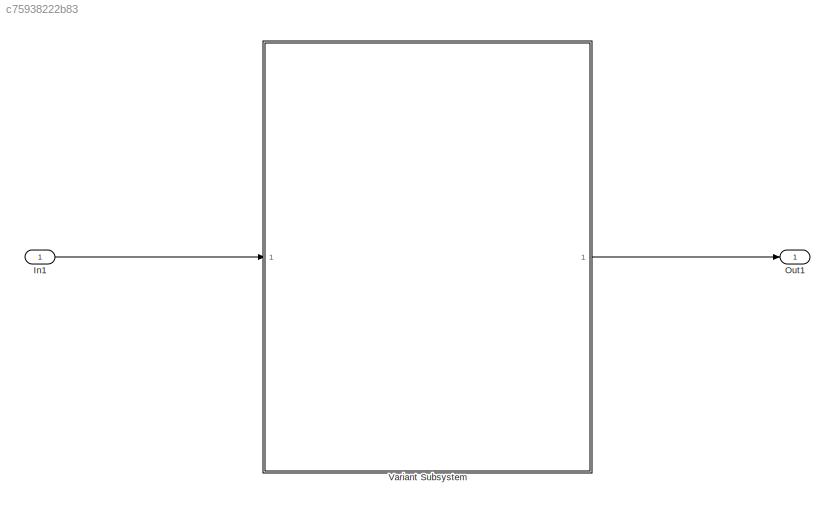
MODEL slx_c75938222b83
KIND model
CONFIG AbsTol = auto
CONFIG EnableMultiTasking = off
CONFIG FixedStep = auto
CONFIG MaxStep = auto
CONFIG MinStep = auto
CONFIG RelTol = 1e-3
CONFIG SampleTimeConstraint = Unconstrained
CONFIG SolverName = VariableStepAuto
CONFIG StartTime = 0.0
CONFIG StopTime = 10.0
BLOCK [Inport] In1
BLOCK [Outport] Out1
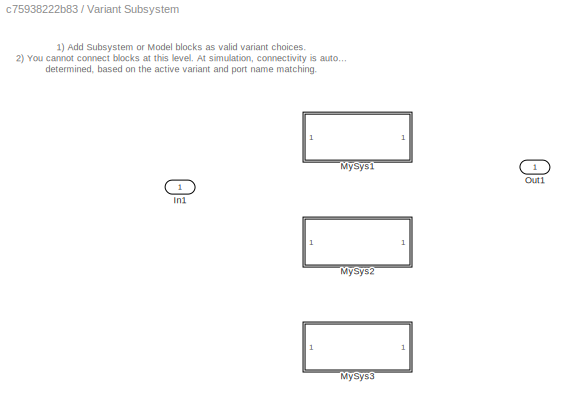
BLOCK [SubSystem] Variant Subsystem
  Ports = [1, 1]
  RequestExecContextInheritance = off
  Variant = on
BLOCK [Inport] Variant Subsystem/In1
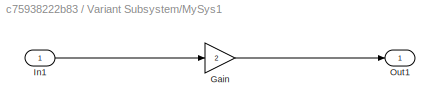
BLOCK [SubSystem] Variant Subsystem/MySys1
  Ports = [1, 1]
  RequestExecContextInheritance = off
  VariantControl = KK == 1
BLOCK [Gain] Variant Subsystem/MySys1/Gain
  Gain = 2
BLOCK [Inport] Variant Subsystem/MySys1/In1
BLOCK [Outport] Variant Subsystem/MySys1/Out1
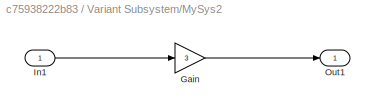
BLOCK [SubSystem] Variant Subsystem/MySys2
  Ports = [1, 1]
  RequestExecContextInheritance = off
  VariantControl = KK == 2
BLOCK [Gain] Variant Subsystem/MySys2/Gain
  Gain = 3
BLOCK [Inport] Variant Subsystem/MySys2/In1
BLOCK [Outport] Variant Subsystem/MySys2/Out1
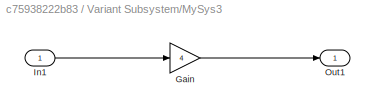
BLOCK [SubSystem] Variant Subsystem/MySys3
  Ports = [1, 1]
  RequestExecContextInheritance = off
  VariantControl = KK == 3
BLOCK [Gain] Variant Subsystem/MySys3/Gain
  Gain = 4
BLOCK [Inport] Variant Subsystem/MySys3/In1
BLOCK [Outport] Variant Subsystem/MySys3/Out1
BLOCK [Outport] Variant Subsystem/Out1
ANNOTATION Variant Subsystem: 1) Add Subsystem or Model blocks as valid variant choices. 2) You cannot connect blocks at this level. At simulation, connectivity is automatically determined, based on the active variant and port name matching.
LINE In1:1 -> Variant Subsystem:1
LINE Variant Subsystem/MySys1/Gain:1 -> Variant Subsystem/MySys1/Out1:1
LINE Variant Subsystem/MySys1/In1:1 -> Variant Subsystem/MySys1/Gain:1
LINE Variant Subsystem/MySys2/Gain:1 -> Variant Subsystem/MySys2/Out1:1
LINE Variant Subsystem/MySys2/In1:1 -> Variant Subsystem/MySys2/Gain:1
LINE Variant Subsystem/MySys3/Gain:1 -> Variant Subsystem/MySys3/Out1:1
LINE Variant Subsystem/MySys3/In1:1 -> Variant Subsystem/MySys3/Gain:1
LINE Variant Subsystem:1 -> Out1:1
